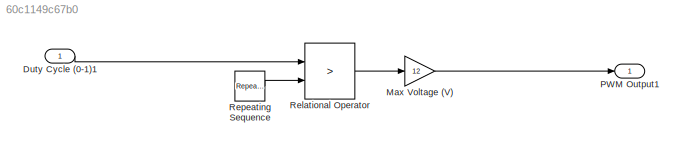
MODEL slx_60c1149c67b0
KIND model
CONFIG AbsTol = auto
CONFIG EnableMultiTasking = off
CONFIG FixedStep = auto
CONFIG MaxStep = 0.001
CONFIG MinStep = 0.0001
CONFIG RelTol = 1e-3
CONFIG SampleTimeConstraint = Unconstrained
CONFIG SolverName = ode45
CONFIG StartTime = 0.0
CONFIG StopTime = 10
BLOCK [Inport] Duty Cycle (0-1)1
  SampleTime = 0
BLOCK [Gain] Max Voltage (V)
  Gain = 12
  OutDataTypeStr = double
BLOCK [Outport] PWM Output1
BLOCK [RelationalOperator] Relational Operator
  InputSameDT = off
  Operator = >
  OutDataTypeStr = boolean
  RndMeth = Simplest
BLOCK [Reference] Repeating Sequence  REF=simulink/Sources/Repeating
Sequence
  SourceBlock = simulink/Sources/Repeating\nSequence
  SourceType = Repeating table
LINE Duty Cycle (0-1)1:1 -> Relational Operator:1
LINE Max Voltage (V):1 -> PWM Output1:1
LINE Relational Operator:1 -> Max Voltage (V):1
LINE Repeating Sequence:1 -> Relational Operator:2
